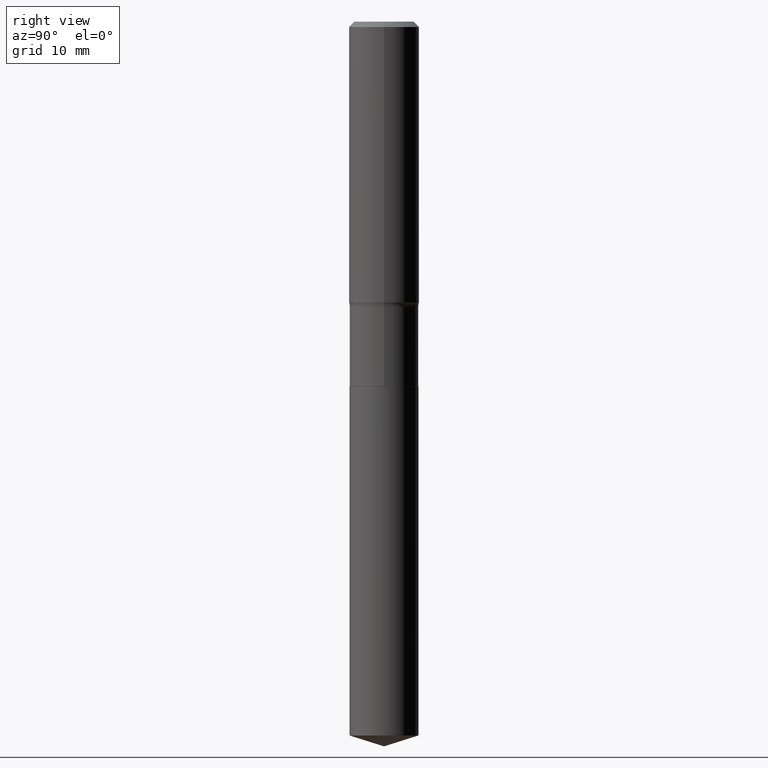
[diagram: clean part render]
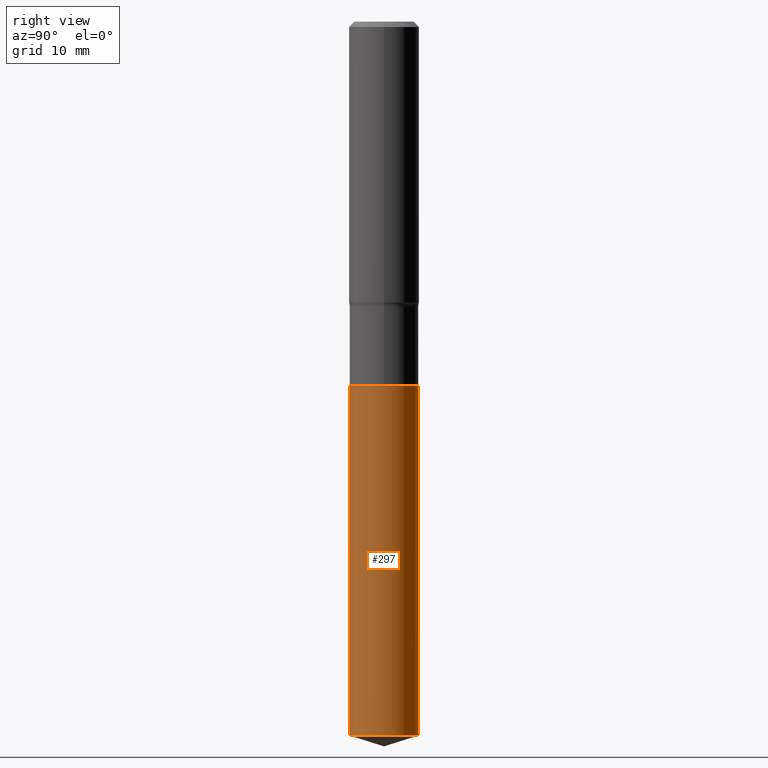
[diagram: same view with one face highlighted and labeled with its STEP entity id]
A machine part, right view. The second image highlights one B-rep face of the part: STEP entity #297.
In plain terms, the highlighted cylindrical surface (edge-blend (fillet) strip) has radius 4.8997 mm, axis along (-0, 0, 1).
Its self-contained STEP definition (entity closure, byte-faithful):
#6 = CIRCLE ( 'NONE', #445, 0.1928999999999999881 ) ;
#9 = DIRECTION ( 'NONE',  ( -2.445554267651848899E-29, 3.491358953158648949E-15, 1.000000000000000000 ) ) ;
#16 = DIRECTION ( 'NONE',  ( -2.445554267651848899E-29, 3.491358953158648949E-15, 1.000000000000000000 ) ) ;
#19 = CARTESIAN_POINT ( 'NONE',  ( 1.370636937281282873E-15, 0.1928999999999928272, -2.039300000000000779 ) ) ;
#25 = DIRECTION ( 'NONE',  ( -2.445554267651849179E-29, 3.491358953158648949E-15, 1.000000000000000000 ) ) ;
#41 = DIRECTION ( 'NONE',  ( -6.982962677686265133E-15, -1.000000000000000000, 2.832398127179122126E-15 ) ) ;
#45 = LINE ( 'NONE', #311, #300 ) ;
#46 = ORIENTED_EDGE ( 'NONE', *, *, #178, .T. ) ;
#51 = CARTESIAN_POINT ( 'NONE',  ( -1.347013500525630576E-15, -0.1929000000000071213, -2.039299999999999446 ) ) ;
#82 = CARTESIAN_POINT ( 'NONE',  ( 1.370636937281330796E-15, 0.1928999999999860826, -3.994278863625245535 ) ) ;
#90 = CARTESIAN_POINT ( 'NONE',  ( -1.347013500525583047E-15, -0.1929000000000139492, -3.994278863625244647 ) ) ;
#100 = ORIENTED_EDGE ( 'NONE', *, *, #195, .F. ) ;
#116 = CARTESIAN_POINT ( 'NONE',  ( 9.768051439561228148E-29, -1.394571085305674825E-14, -3.994278863625245091 ) ) ;
#154 = FACE_OUTER_BOUND ( 'NONE', #155, .T. ) ;
#155 = EDGE_LOOP ( 'NONE', ( #46, #450, #349, #100 ) ) ;
#178 = EDGE_CURVE ( 'NONE', #257, #447, #415, .T. ) ;
#195 = EDGE_CURVE ( 'NONE', #257, #358, #45, .T. ) ;
#198 = AXIS2_PLACEMENT_3D ( 'NONE', #343, #9, #41 ) ;
#204 = DIRECTION ( 'NONE',  ( -6.982962677686265133E-15, -1.000000000000000000, 2.832398127179122126E-15 ) ) ;
#207 = DIRECTION ( 'NONE',  ( -2.445554267651848899E-29, 3.491358953158648949E-15, 1.000000000000000000 ) ) ;
#257 = VERTEX_POINT ( 'NONE', #90 ) ;
#297 = ADVANCED_FACE ( 'NONE', ( #154 ), #345, .T. ) ;
#300 = VECTOR ( 'NONE', #351, 39.37007874015748143 ) ;
#303 = VECTOR ( 'NONE', #25, 39.37007874015748143 ) ;
#309 = DIRECTION ( 'NONE',  ( -6.982962677686265133E-15, -1.000000000000000000, 2.832398127179122126E-15 ) ) ;
#311 = CARTESIAN_POINT ( 'NONE',  ( -1.347013500525630576E-15, -0.1929000000000071213, -2.039299999999999446 ) ) ;
#343 = CARTESIAN_POINT ( 'NONE',  ( 4.987044536453349004E-29, -7.120177894302827657E-15, -2.039299999999999891 ) ) ;
#345 = CYLINDRICAL_SURFACE ( 'NONE', #198, 0.1928999999999999881 ) ;
#349 = ORIENTED_EDGE ( 'NONE', *, *, #350, .F. ) ;
#350 = EDGE_CURVE ( 'NONE', #358, #476, #6, .T. ) ;
#351 = DIRECTION ( 'NONE',  ( -2.445554267651849179E-29, 3.491358953158648949E-15, 1.000000000000000000 ) ) ;
#358 = VERTEX_POINT ( 'NONE', #51 ) ;
#363 = CARTESIAN_POINT ( 'NONE',  ( 4.987044536453349004E-29, -7.120177894302827657E-15, -2.039299999999999891 ) ) ;
#392 = EDGE_CURVE ( 'NONE', #447, #476, #443, .T. ) ;
#415 = CIRCLE ( 'NONE', #480, 0.1928999999999999881 ) ;
#431 = CARTESIAN_POINT ( 'NONE',  ( 1.370636937281330796E-15, 0.1928999999999928272, -2.039300000000000779 ) ) ;
#443 = LINE ( 'NONE', #19, #303 ) ;
#445 = AXIS2_PLACEMENT_3D ( 'NONE', #363, #207, #309 ) ;
#447 = VERTEX_POINT ( 'NONE', #82 ) ;
#450 = ORIENTED_EDGE ( 'NONE', *, *, #392, .T. ) ;
#476 = VERTEX_POINT ( 'NONE', #431 ) ;
#480 = AXIS2_PLACEMENT_3D ( 'NONE', #116, #16, #204 ) ;